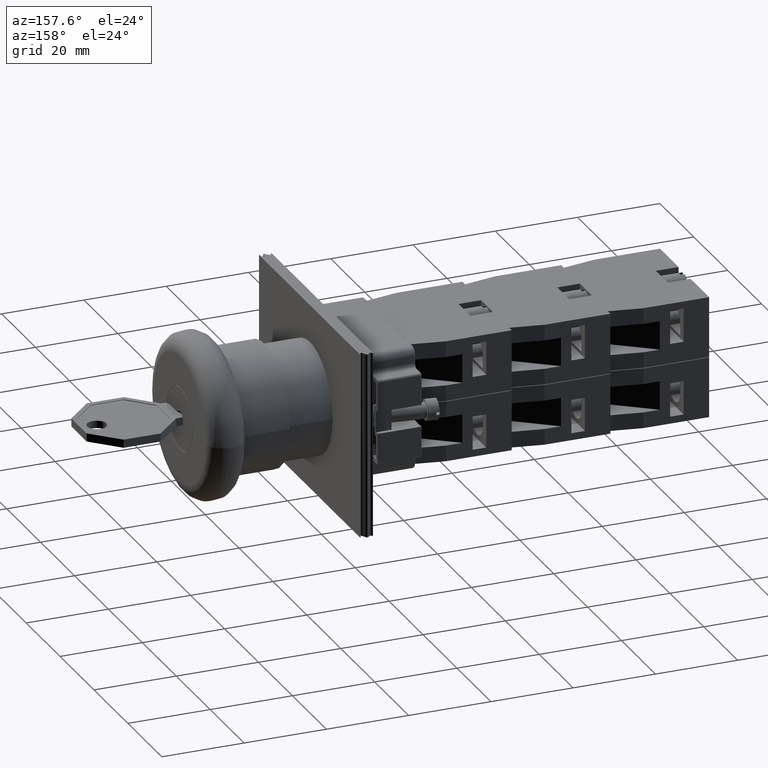
[diagram: clean part render]
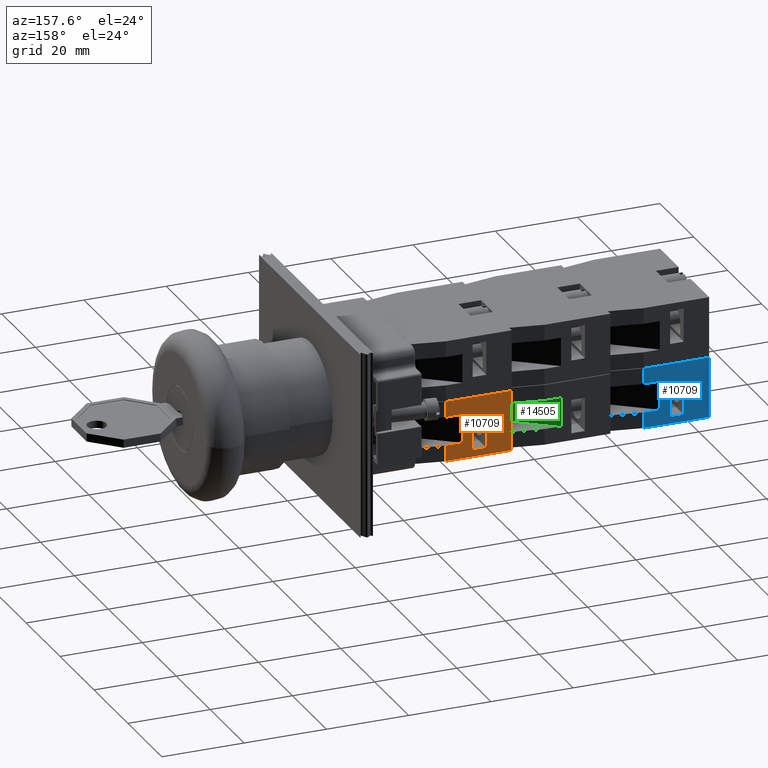
[diagram: same view with three faces highlighted in distinct colors, each labeled with its STEP entity id]
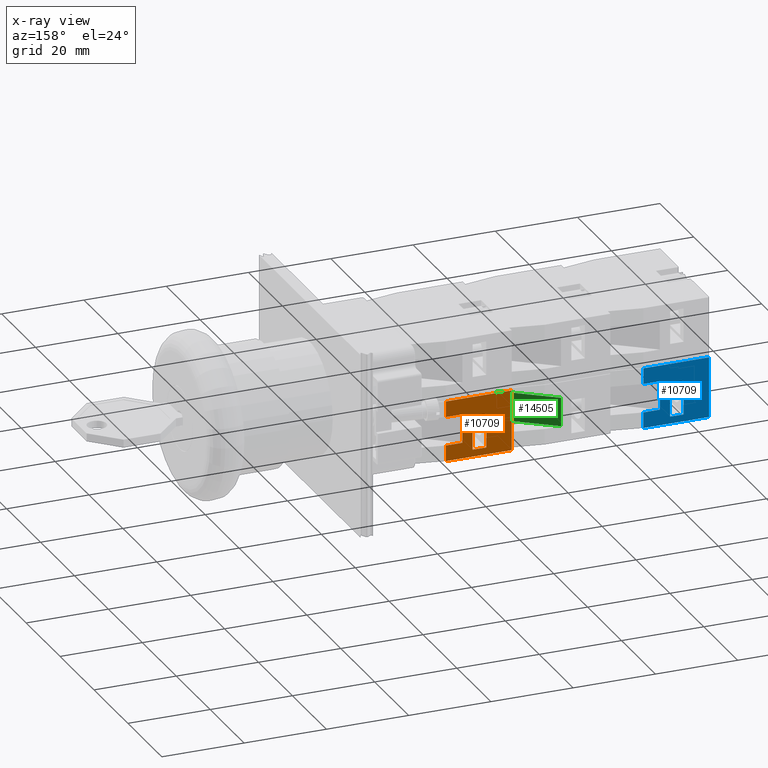
[diagram: x-ray of the same camera — body ghosted, the three highlighted faces saturated]
A machine part, auxiliary view with three faces highlighted in distinct colors.
The next image is the same camera in x-ray (body ghosted, the three faces saturated) — at least one of them is partly hidden behind the body in this view.
Their STEP definitions:

[orange] entity #10709 — the highlighted planar face has unit normal (0, 1, 0).
#10530=CARTESIAN_POINT('',(-44.936741828918457,7.797073323279618,10.850000000000000));
#10531=VERTEX_POINT('',#10530);
#10540=CARTESIAN_POINT('',(-44.936741828918457,11.797073323279610,10.850000000000000));
#10541=VERTEX_POINT('',#10540);
#10542=CARTESIAN_POINT('',(-44.936741828918457,11.797073323279610,10.850000000000000));
#10543=DIRECTION('',(0.0,-1.0,0.0));
#10544=VECTOR('',#10543,3.999999999999992);
#10545=LINE('',#10542,#10544);
#10546=EDGE_CURVE('',#10541,#10531,#10545,.T.);
#10570=CARTESIAN_POINT('',(-44.936741828918457,11.797073323279610,3.850000000000001));
#10571=VERTEX_POINT('',#10570);
#10587=CARTESIAN_POINT('',(-44.936741828918457,11.797073323279610,3.850000000000001));
#10588=DIRECTION('',(0.0,0.0,1.0));
#10589=VECTOR('',#10588,6.999999999999999);
#10590=LINE('',#10587,#10589);
#10591=EDGE_CURVE('',#10571,#10541,#10590,.T.);
#10603=CARTESIAN_POINT('',(-44.936741828918457,7.797073323279618,3.850000000000000));
#10604=VERTEX_POINT('',#10603);
#10618=CARTESIAN_POINT('',(-44.936741828918457,7.797073323279618,3.850000000000000));
#10619=DIRECTION('',(0.0,1.0,0.0));
#10620=VECTOR('',#10619,3.999999999999992);
#10621=LINE('',#10618,#10620);
#10622=EDGE_CURVE('',#10604,#10571,#10621,.T.);
#10627=CARTESIAN_POINT('',(-44.936741828918457,7.797073323279626,0.0));
#10628=DIRECTION('',(-1.0,0.0,0.0));
#10629=DIRECTION('',(0.0,0.0,1.0));
#10630=AXIS2_PLACEMENT_3D('',#10627,#10628,#10629);
#10631=PLANE('',#10630);
#10632=ORIENTED_EDGE('',*,*,#10622,.T.);
#10633=ORIENTED_EDGE('',*,*,#10591,.T.);
#10634=ORIENTED_EDGE('',*,*,#10546,.T.);
#10635=CARTESIAN_POINT('',(-44.936741828918457,7.797073323279626,14.699999999999999));
#10636=VERTEX_POINT('',#10635);
#10637=CARTESIAN_POINT('',(-44.936741828918457,7.797073323279618,10.850000000000000));
#10638=DIRECTION('',(0.0,0.0,1.0));
#10639=VECTOR('',#10638,3.850000000000000);
#10640=LINE('',#10637,#10639);
#10641=EDGE_CURVE('',#10531,#10636,#10640,.T.);
#10642=ORIENTED_EDGE('',*,*,#10641,.T.);
#10643=CARTESIAN_POINT('',(-44.936741828918471,23.797073323279623,14.699999999999999));
#10644=VERTEX_POINT('',#10643);
#10645=CARTESIAN_POINT('',(-44.936741828918457,7.797073323279626,14.699999999999999));
#10646=DIRECTION('',(0.0,1.0,0.0));
#10647=VECTOR('',#10646,15.999999999999996);
#10648=LINE('',#10645,#10647);
#10649=EDGE_CURVE('',#10636,#10644,#10648,.T.);
#10650=ORIENTED_EDGE('',*,*,#10649,.T.);
#10651=CARTESIAN_POINT('',(-44.936741828918471,23.797073323279623,0.0));
#10652=VERTEX_POINT('',#10651);
#10653=CARTESIAN_POINT('',(-44.936741828918471,23.797073323279623,0.0));
#10654=DIRECTION('',(0.0,0.0,1.0));
#10655=VECTOR('',#10654,14.699999999999999);
#10656=LINE('',#10653,#10655);
#10657=EDGE_CURVE('',#10652,#10644,#10656,.T.);
#10658=ORIENTED_EDGE('',*,*,#10657,.F.);
#10659=CARTESIAN_POINT('',(-44.936741828918457,7.797073323279626,0.0));
#10660=VERTEX_POINT('',#10659);
#10661=CARTESIAN_POINT('',(-44.936741828918457,7.797073323279626,0.0));
#10662=DIRECTION('',(0.0,1.0,0.0));
#10663=VECTOR('',#10662,15.999999999999996);
#10664=LINE('',#10661,#10663);
#10665=EDGE_CURVE('',#10660,#10652,#10664,.T.);
#10666=ORIENTED_EDGE('',*,*,#10665,.F.);
#10667=CARTESIAN_POINT('',(-44.936741828918457,7.797073323279626,0.0));
#10668=DIRECTION('',(0.0,0.0,1.0));
#10669=VECTOR('',#10668,3.850000000000000);
#10670=LINE('',#10667,#10669);
#10671=EDGE_CURVE('',#10660,#10604,#10670,.T.);
#10672=ORIENTED_EDGE('',*,*,#10671,.T.);
#10673=EDGE_LOOP('',(#10632,#10633,#10634,#10642,#10650,#10658,#10666,#10672));
#10674=FACE_OUTER_BOUND('',#10673,.T.);
#10675=CARTESIAN_POINT('',(-44.936741828918457,14.297073323279621,4.800000000000002));
#10676=VERTEX_POINT('',#10675);
#10677=CARTESIAN_POINT('',(-44.936741828918471,17.597073323279623,4.800000000000001));
#10678=VERTEX_POINT('',#10677);
#10679=CARTESIAN_POINT('',(-44.936741828918457,14.297073323279621,4.800000000000002));
#10680=DIRECTION('',(0.0,1.0,0.0));
#10681=VECTOR('',#10680,3.300000000000003);
#10682=LINE('',#10679,#10681);
#10683=EDGE_CURVE('',#10676,#10678,#10682,.T.);
#10684=ORIENTED_EDGE('',*,*,#10683,.T.);
#10685=CARTESIAN_POINT('',(-44.936741828918471,17.597073323279623,13.0));
#10686=VERTEX_POINT('',#10685);
#10687=CARTESIAN_POINT('',(-44.936741828918471,17.597073323279623,4.800000000000001));
#10688=DIRECTION('',(0.0,0.0,1.0));
#10689=VECTOR('',#10688,8.199999999999999);
#10690=LINE('',#10687,#10689);
#10691=EDGE_CURVE('',#10678,#10686,#10690,.T.);
#10692=ORIENTED_EDGE('',*,*,#10691,.T.);
#10693=CARTESIAN_POINT('',(-44.936741828918457,14.297073323279623,13.0));
#10694=VERTEX_POINT('',#10693);
#10695=CARTESIAN_POINT('',(-44.936741828918471,17.597073323279623,13.0));
#10696=DIRECTION('',(0.0,-1.0,0.0));
#10697=VECTOR('',#10696,3.300000000000001);
#10698=LINE('',#10695,#10697);
#10699=EDGE_CURVE('',#10686,#10694,#10698,.T.);
#10700=ORIENTED_EDGE('',*,*,#10699,.T.);
#10701=CARTESIAN_POINT('',(-44.936741828918457,14.297073323279623,13.0));
#10702=DIRECTION('',(0.0,0.0,-1.0));
#10703=VECTOR('',#10702,8.199999999999999);
#10704=LINE('',#10701,#10703);
#10705=EDGE_CURVE('',#10694,#10676,#10704,.T.);
#10706=ORIENTED_EDGE('',*,*,#10705,.T.);
#10707=EDGE_LOOP('',(#10684,#10692,#10700,#10706));
#10708=FACE_BOUND('',#10707,.T.);
#10709=ADVANCED_FACE('',(#10674,#10708),#10631,.T.);

[blue] entity #10709 — the highlighted planar face has unit normal (0, 1, 0).
#10530=CARTESIAN_POINT('',(-44.936741828918457,7.797073323279618,10.850000000000000));
#10531=VERTEX_POINT('',#10530);
#10540=CARTESIAN_POINT('',(-44.936741828918457,11.797073323279610,10.850000000000000));
#10541=VERTEX_POINT('',#10540);
#10542=CARTESIAN_POINT('',(-44.936741828918457,11.797073323279610,10.850000000000000));
#10543=DIRECTION('',(0.0,-1.0,0.0));
#10544=VECTOR('',#10543,3.999999999999992);
#10545=LINE('',#10542,#10544);
#10546=EDGE_CURVE('',#10541,#10531,#10545,.T.);
#10570=CARTESIAN_POINT('',(-44.936741828918457,11.797073323279610,3.850000000000001));
#10571=VERTEX_POINT('',#10570);
#10587=CARTESIAN_POINT('',(-44.936741828918457,11.797073323279610,3.850000000000001));
#10588=DIRECTION('',(0.0,0.0,1.0));
#10589=VECTOR('',#10588,6.999999999999999);
#10590=LINE('',#10587,#10589);
#10591=EDGE_CURVE('',#10571,#10541,#10590,.T.);
#10603=CARTESIAN_POINT('',(-44.936741828918457,7.797073323279618,3.850000000000000));
#10604=VERTEX_POINT('',#10603);
#10618=CARTESIAN_POINT('',(-44.936741828918457,7.797073323279618,3.850000000000000));
#10619=DIRECTION('',(0.0,1.0,0.0));
#10620=VECTOR('',#10619,3.999999999999992);
#10621=LINE('',#10618,#10620);
#10622=EDGE_CURVE('',#10604,#10571,#10621,.T.);
#10627=CARTESIAN_POINT('',(-44.936741828918457,7.797073323279626,0.0));
#10628=DIRECTION('',(-1.0,0.0,0.0));
#10629=DIRECTION('',(0.0,0.0,1.0));
#10630=AXIS2_PLACEMENT_3D('',#10627,#10628,#10629);
#10631=PLANE('',#10630);
#10632=ORIENTED_EDGE('',*,*,#10622,.T.);
#10633=ORIENTED_EDGE('',*,*,#10591,.T.);
#10634=ORIENTED_EDGE('',*,*,#10546,.T.);
#10635=CARTESIAN_POINT('',(-44.936741828918457,7.797073323279626,14.699999999999999));
#10636=VERTEX_POINT('',#10635);
#10637=CARTESIAN_POINT('',(-44.936741828918457,7.797073323279618,10.850000000000000));
#10638=DIRECTION('',(0.0,0.0,1.0));
#10639=VECTOR('',#10638,3.850000000000000);
#10640=LINE('',#10637,#10639);
#10641=EDGE_CURVE('',#10531,#10636,#10640,.T.);
#10642=ORIENTED_EDGE('',*,*,#10641,.T.);
#10643=CARTESIAN_POINT('',(-44.936741828918471,23.797073323279623,14.699999999999999));
#10644=VERTEX_POINT('',#10643);
#10645=CARTESIAN_POINT('',(-44.936741828918457,7.797073323279626,14.699999999999999));
#10646=DIRECTION('',(0.0,1.0,0.0));
#10647=VECTOR('',#10646,15.999999999999996);
#10648=LINE('',#10645,#10647);
#10649=EDGE_CURVE('',#10636,#10644,#10648,.T.);
#10650=ORIENTED_EDGE('',*,*,#10649,.T.);
#10651=CARTESIAN_POINT('',(-44.936741828918471,23.797073323279623,0.0));
#10652=VERTEX_POINT('',#10651);
#10653=CARTESIAN_POINT('',(-44.936741828918471,23.797073323279623,0.0));
#10654=DIRECTION('',(0.0,0.0,1.0));
#10655=VECTOR('',#10654,14.699999999999999);
#10656=LINE('',#10653,#10655);
#10657=EDGE_CURVE('',#10652,#10644,#10656,.T.);
#10658=ORIENTED_EDGE('',*,*,#10657,.F.);
#10659=CARTESIAN_POINT('',(-44.936741828918457,7.797073323279626,0.0));
#10660=VERTEX_POINT('',#10659);
#10661=CARTESIAN_POINT('',(-44.936741828918457,7.797073323279626,0.0));
#10662=DIRECTION('',(0.0,1.0,0.0));
#10663=VECTOR('',#10662,15.999999999999996);
#10664=LINE('',#10661,#10663);
#10665=EDGE_CURVE('',#10660,#10652,#10664,.T.);
#10666=ORIENTED_EDGE('',*,*,#10665,.F.);
#10667=CARTESIAN_POINT('',(-44.936741828918457,7.797073323279626,0.0));
#10668=DIRECTION('',(0.0,0.0,1.0));
#10669=VECTOR('',#10668,3.850000000000000);
#10670=LINE('',#10667,#10669);
#10671=EDGE_CURVE('',#10660,#10604,#10670,.T.);
#10672=ORIENTED_EDGE('',*,*,#10671,.T.);
#10673=EDGE_LOOP('',(#10632,#10633,#10634,#10642,#10650,#10658,#10666,#10672));
#10674=FACE_OUTER_BOUND('',#10673,.T.);
#10675=CARTESIAN_POINT('',(-44.936741828918457,14.297073323279621,4.800000000000002));
#10676=VERTEX_POINT('',#10675);
#10677=CARTESIAN_POINT('',(-44.936741828918471,17.597073323279623,4.800000000000001));
#10678=VERTEX_POINT('',#10677);
#10679=CARTESIAN_POINT('',(-44.936741828918457,14.297073323279621,4.800000000000002));
#10680=DIRECTION('',(0.0,1.0,0.0));
#10681=VECTOR('',#10680,3.300000000000003);
#10682=LINE('',#10679,#10681);
#10683=EDGE_CURVE('',#10676,#10678,#10682,.T.);
#10684=ORIENTED_EDGE('',*,*,#10683,.T.);
#10685=CARTESIAN_POINT('',(-44.936741828918471,17.597073323279623,13.0));
#10686=VERTEX_POINT('',#10685);
#10687=CARTESIAN_POINT('',(-44.936741828918471,17.597073323279623,4.800000000000001));
#10688=DIRECTION('',(0.0,0.0,1.0));
#10689=VECTOR('',#10688,8.199999999999999);
#10690=LINE('',#10687,#10689);
#10691=EDGE_CURVE('',#10678,#10686,#10690,.T.);
#10692=ORIENTED_EDGE('',*,*,#10691,.T.);
#10693=CARTESIAN_POINT('',(-44.936741828918457,14.297073323279623,13.0));
#10694=VERTEX_POINT('',#10693);
#10695=CARTESIAN_POINT('',(-44.936741828918471,17.597073323279623,13.0));
#10696=DIRECTION('',(0.0,-1.0,0.0));
#10697=VECTOR('',#10696,3.300000000000001);
#10698=LINE('',#10695,#10697);
#10699=EDGE_CURVE('',#10686,#10694,#10698,.T.);
#10700=ORIENTED_EDGE('',*,*,#10699,.T.);
#10701=CARTESIAN_POINT('',(-44.936741828918457,14.297073323279623,13.0));
#10702=DIRECTION('',(0.0,0.0,-1.0));
#10703=VECTOR('',#10702,8.199999999999999);
#10704=LINE('',#10701,#10703);
#10705=EDGE_CURVE('',#10694,#10676,#10704,.T.);
#10706=ORIENTED_EDGE('',*,*,#10705,.T.);
#10707=EDGE_LOOP('',(#10684,#10692,#10700,#10706));
#10708=FACE_BOUND('',#10707,.T.);
#10709=ADVANCED_FACE('',(#10674,#10708),#10631,.T.);

[green] entity #14505 — the highlighted face is a freeform B-spline surface patch.
#14450=CARTESIAN_POINT('',(-44.936741828918457,11.797073323279610,10.850000000000000));
#14451=VERTEX_POINT('',#14450);
#14458=CARTESIAN_POINT('',(-35.936741828918450,-0.202926676720384,10.850000000000000));
#14459=VERTEX_POINT('',#14458);
#14460=CARTESIAN_POINT('',(-35.936741828918450,-0.202926676720384,10.850000000000000));
#14461=DIRECTION('',(-0.600000000000000,0.800000000000000,0.0));
#14462=VECTOR('',#14461,15.0);
#14463=LINE('',#14460,#14462);
#14464=EDGE_CURVE('',#14459,#14451,#14463,.T.);
#14475=CARTESIAN_POINT('',(-44.936741828918464,11.797073323279616,3.850000000000000));
#14476=CARTESIAN_POINT('',(-44.936741828918464,11.797073323279616,10.850000000000001));
#14477=CARTESIAN_POINT('',(-35.936741828918443,-0.202926676720384,3.850000000000000));
#14478=CARTESIAN_POINT('',(-35.936741828918450,-0.202926676720384,10.850000000000001));
#14479=B_SPLINE_SURFACE_WITH_KNOTS('',1,1,((#14475,#14477),(#14476,#14478)),.UNSPECIFIED.,.F.,.F.,.U.,(2,2),(2,2),(0.0,7.000000000000002),(0.0,15.000000000000012),.UNSPECIFIED.);
#14480=CARTESIAN_POINT('',(-44.936741828918457,11.797073323279610,3.850000000000001));
#14481=VERTEX_POINT('',#14480);
#14482=CARTESIAN_POINT('',(-35.936741828918450,-0.202926676720384,3.850000000000001));
#14483=VERTEX_POINT('',#14482);
#14484=CARTESIAN_POINT('',(-44.936741828918457,11.797073323279610,3.850000000000001));
#14485=DIRECTION('',(0.600000000000000,-0.800000000000000,0.0));
#14486=VECTOR('',#14485,15.0);
#14487=LINE('',#14484,#14486);
#14488=EDGE_CURVE('',#14481,#14483,#14487,.T.);
#14489=ORIENTED_EDGE('',*,*,#14488,.T.);
#14490=CARTESIAN_POINT('',(-35.936741828918450,-0.202926676720384,10.850000000000000));
#14491=DIRECTION('',(0.0,0.0,-1.0));
#14492=VECTOR('',#14491,6.999999999999999);
#14493=LINE('',#14490,#14492);
#14494=EDGE_CURVE('',#14459,#14483,#14493,.T.);
#14495=ORIENTED_EDGE('',*,*,#14494,.F.);
#14496=ORIENTED_EDGE('',*,*,#14464,.T.);
#14497=CARTESIAN_POINT('',(-44.936741828918457,11.797073323279610,3.850000000000001));
#14498=DIRECTION('',(0.0,0.0,1.0));
#14499=VECTOR('',#14498,6.999999999999999);
#14500=LINE('',#14497,#14499);
#14501=EDGE_CURVE('',#14481,#14451,#14500,.T.);
#14502=ORIENTED_EDGE('',*,*,#14501,.F.);
#14503=EDGE_LOOP('',(#14489,#14495,#14496,#14502));
#14504=FACE_OUTER_BOUND('',#14503,.T.);
#14505=ADVANCED_FACE('',(#14504),#14479,.F.);